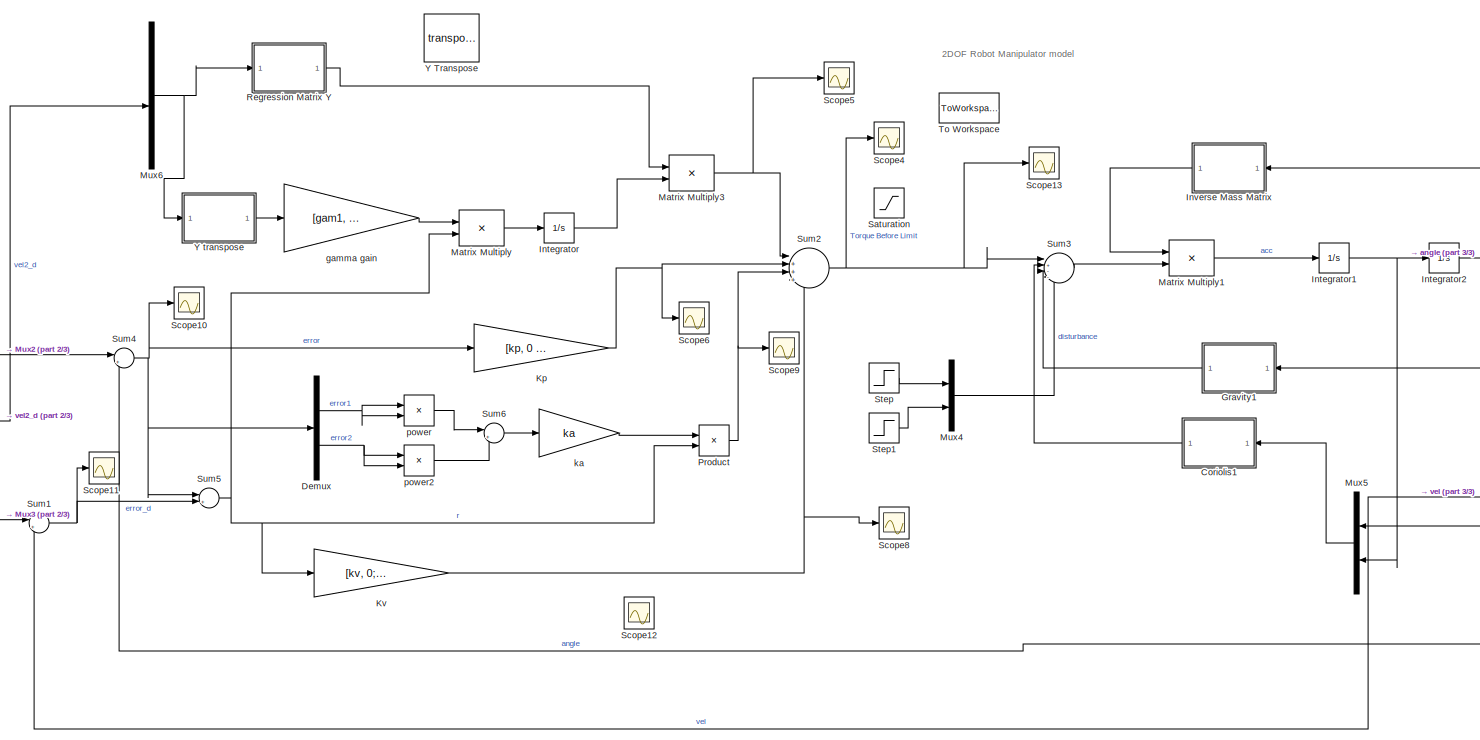
[diagram: root canvas - part 1/3, center side, full height]
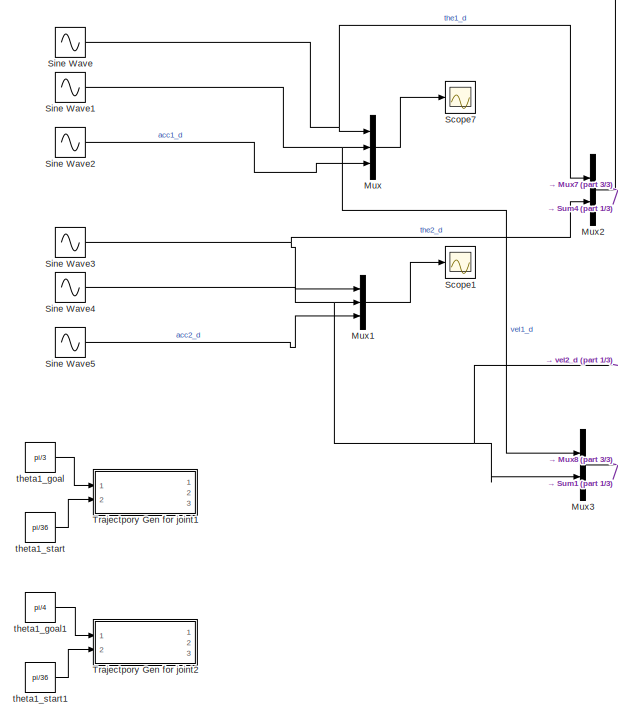
[diagram: root canvas - part 2/3, left side, full height]
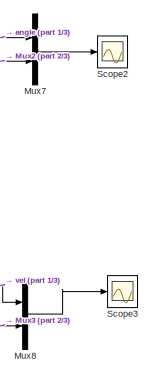
[diagram: root canvas - part 3/3, middle right region]
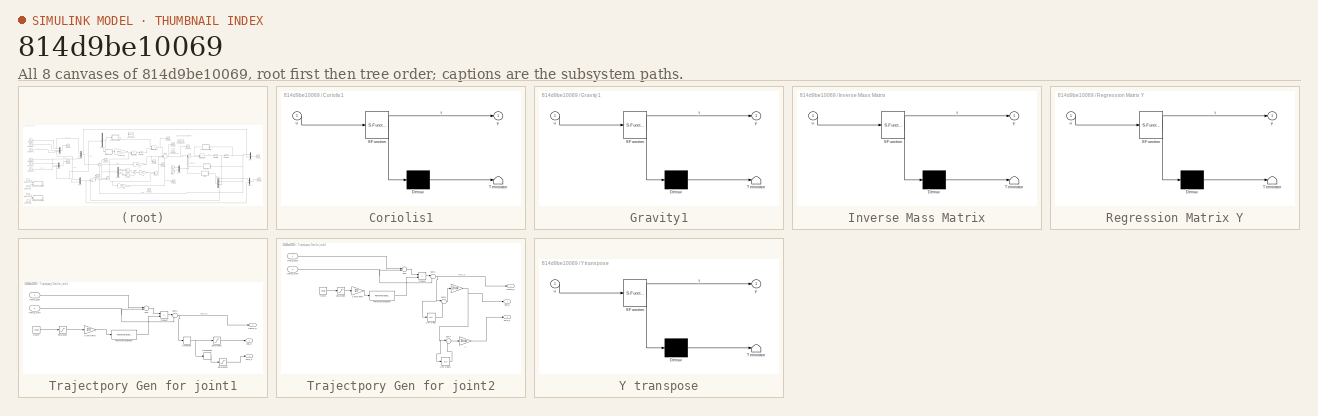
[diagram: thumbnail index - all 8 canvases of the model, root first then tree order]
MODEL slx_814d9be10069
KIND model
CONFIG AbsTol = auto
CONFIG EnableMultiTasking = off
CONFIG FixedStep = auto
CONFIG MaxStep = auto
CONFIG MinStep = auto
CONFIG RelTol = 1e-3
CONFIG SampleTimeConstraint = Unconstrained
CONFIG Solver = ode45
CONFIG SolverName = ode45
CONFIG StartTime = 0.0
CONFIG StopTime = 60
BLOCK [SubSystem] Coriolis1
  ErrorFcn = Stateflow.Translate.translate
  PermitHierarchicalResolution = ExplicitOnly
  Ports = [1, 1]
  RequestExecContextInheritance = off
  SFBlockType = MATLAB Function
  TreatAsAtomicUnit = on
BLOCK [Demux] Coriolis1/ Demux 
  Outputs = 1
  Ports = [1, 1]
BLOCK [S-Function] Coriolis1/ SFunction 
  EnableBusSupport = on
  FunctionName = sf_sfun
  PortCounts = [1 2]
  Ports = [1, 2]
  SFcnIsStateOwnerBlock = off
  SFunctionDeploymentMode = off
  Tag = Stateflow S-Function AdaptiveControl_IRC 5
BLOCK [Terminator] Coriolis1/ Terminator 
BLOCK [Inport] Coriolis1/u
  IconDisplay = Port number
BLOCK [Outport] Coriolis1/y
  IconDisplay = Port number
BLOCK [Demux] Demux
  DisplayOption = bar
  Outputs = 2
  Ports = [1, 2]
BLOCK [SubSystem] Gravity1
  ErrorFcn = Stateflow.Translate.translate
  PermitHierarchicalResolution = ExplicitOnly
  Ports = [1, 1]
  RequestExecContextInheritance = off
  SFBlockType = MATLAB Function
  TreatAsAtomicUnit = on
BLOCK [Demux] Gravity1/ Demux 
  Outputs = 1
  Ports = [1, 1]
BLOCK [S-Function] Gravity1/ SFunction 
  EnableBusSupport = on
  FunctionName = sf_sfun
  PortCounts = [1 2]
  Ports = [1, 2]
  SFcnIsStateOwnerBlock = off
  SFunctionDeploymentMode = off
  Tag = Stateflow S-Function AdaptiveControl_IRC 6
BLOCK [Terminator] Gravity1/ Terminator 
BLOCK [Inport] Gravity1/u
  IconDisplay = Port number
BLOCK [Outport] Gravity1/y
  IconDisplay = Port number
BLOCK [Integrator] Integrator
  InitialCondition = [0; 0]
  Ports = [1, 1]
BLOCK [Integrator] Integrator1
  InitialCondition = [0; 0]
  Ports = [1, 1]
BLOCK [Integrator] Integrator2
  InitialCondition = [0; 0]
  Ports = [1, 1]
BLOCK [SubSystem] Inverse Mass Matrix
  ErrorFcn = Stateflow.Translate.translate
  PermitHierarchicalResolution = ExplicitOnly
  Ports = [1, 1]
  RequestExecContextInheritance = off
  SFBlockType = MATLAB Function
  TreatAsAtomicUnit = on
BLOCK [Demux] Inverse Mass Matrix/ Demux 
  Outputs = 1
  Ports = [1, 1]
BLOCK [S-Function] Inverse Mass Matrix/ SFunction 
  EnableBusSupport = on
  FunctionName = sf_sfun
  PortCounts = [1 2]
  Ports = [1, 2]
  SFcnIsStateOwnerBlock = off
  SFunctionDeploymentMode = off
  Tag = Stateflow S-Function AdaptiveControl_IRC 3
BLOCK [Terminator] Inverse Mass Matrix/ Terminator 
BLOCK [Inport] Inverse Mass Matrix/u
  IconDisplay = Port number
BLOCK [Outport] Inverse Mass Matrix/y
  IconDisplay = Port number
BLOCK [Gain] Kp
  Gain = [kp, 0 ; 0, kp]
  Multiplication = Matrix(K*u)
  OutDataTypeStr = Inherit: Inherit via internal rule
  ParamDataTypeStr = Inherit: Inherit via internal rule
  SaturateOnIntegerOverflow = off
BLOCK [Gain] Kv
  Gain = [kv, 0; 0, kv]
  Multiplication = Matrix(K*u)
  OutDataTypeStr = Inherit: Inherit via internal rule
  ParamDataTypeStr = Inherit: Inherit via internal rule
  SaturateOnIntegerOverflow = off
BLOCK [Product] Matrix Multiply
  InputSameDT = off
  Multiplication = Matrix(*)
  OutDataTypeStr = Inherit: Inherit via internal rule
  Ports = [2, 1]
  RndMeth = Floor
  SaturateOnIntegerOverflow = off
BLOCK [Product] Matrix Multiply1
  InputSameDT = off
  Multiplication = Matrix(*)
  OutDataTypeStr = Inherit: Inherit via internal rule
  Ports = [2, 1]
  RndMeth = Floor
  SaturateOnIntegerOverflow = off
BLOCK [Product] Matrix Multiply3
  InputSameDT = off
  Multiplication = Matrix(*)
  OutDataTypeStr = Inherit: Inherit via internal rule
  Ports = [2, 1]
  RndMeth = Floor
  SaturateOnIntegerOverflow = off
BLOCK [Mux] Mux
  DisplayOption = bar
  Inputs = 3
  Ports = [3, 1]
BLOCK [Mux] Mux1
  DisplayOption = bar
  Inputs = 3
  Ports = [3, 1]
BLOCK [Mux] Mux2
  DisplayOption = bar
  Inputs = 2
  Ports = [2, 1]
BLOCK [Mux] Mux3
  DisplayOption = bar
  Inputs = 2
  Ports = [2, 1]
BLOCK [Mux] Mux4
  DisplayOption = bar
  Inputs = 2
  Ports = [2, 1]
BLOCK [Mux] Mux5
  DisplayOption = bar
  Inputs = 2
  Ports = [2, 1]
BLOCK [Mux] Mux6
  DisplayOption = bar
  Inputs = 6
  Ports = [6, 1]
BLOCK [Mux] Mux7
  DisplayOption = bar
  Inputs = 2
  Ports = [2, 1]
BLOCK [Mux] Mux8
  DisplayOption = bar
  Inputs = 2
  Ports = [2, 1]
BLOCK [Product] Product
  InputSameDT = off
  OutDataTypeStr = Inherit: Inherit via internal rule
  Ports = [2, 1]
  RndMeth = Floor
  SaturateOnIntegerOverflow = off
BLOCK [SubSystem] Regression Matrix Y
  ErrorFcn = Stateflow.Translate.translate
  PermitHierarchicalResolution = ExplicitOnly
  Ports = [1, 1]
  RequestExecContextInheritance = off
  SFBlockType = MATLAB Function
  TreatAsAtomicUnit = on
BLOCK [Demux] Regression Matrix Y/ Demux 
  Outputs = 1
  Ports = [1, 1]
BLOCK [S-Function] Regression Matrix Y/ SFunction 
  EnableBusSupport = on
  FunctionName = sf_sfun
  PortCounts = [1 2]
  Ports = [1, 2]
  SFcnIsStateOwnerBlock = off
  SFunctionDeploymentMode = off
  Tag = Stateflow S-Function AdaptiveControl_IRC 2
BLOCK [Terminator] Regression Matrix Y/ Terminator 
BLOCK [Inport] Regression Matrix Y/u
  IconDisplay = Port number
BLOCK [Outport] Regression Matrix Y/y
  IconDisplay = Port number
BLOCK [Saturate] Saturation
  InputPortMap = u0
  LowerLimit = -4
  Ports = [1, 1]
  UpperLimit = 4
  ZeroCross = off
BLOCK [Scope] Scope1
  Floating = off
  NumInputPorts = 1
  Ports = [1]
  ScopeSpecificationString = Simulink.scopes.TimeScopeBlockCfg('CurrentConfiguration', extmgr.ConfigurationSet(extmgr.Configuration('Core','General UI',true),extmgr.Configuration('Core','Source UI',true),extmgr.Configuration('Sources','WiredSimulink',true,'DataLoggingVariableName','ScopeData1'),extmgr.Configuration('Visuals','Time Domain',true,'SerializedDisplays',{struct('MinYLimReal','-1.90245','MaxYLimReal','5.17331','YLab...<+1432ch>
BLOCK [Scope] Scope10
  Floating = off
  NumInputPorts = 1
  Ports = [1]
  ScopeSpecificationString = Simulink.scopes.TimeScopeBlockCfg('CurrentConfiguration', extmgr.ConfigurationSet(extmgr.Configuration('Core','General UI',true),extmgr.Configuration('Core','Source UI',true),extmgr.Configuration('Sources','WiredSimulink',true,'DataLoggingVariableName','ScopeData5','SampleTime','tick'),extmgr.Configuration('Visuals','Time Domain',true,'SerializedDisplays',{struct('MinYLimReal','-0.00523','MaxYLimR...<+1469ch>
BLOCK [Scope] Scope11
  Floating = off
  NumInputPorts = 1
  Ports = [1]
  ScopeSpecificationString = Simulink.scopes.TimeScopeBlockCfg('CurrentConfiguration', extmgr.ConfigurationSet(extmgr.Configuration('Core','General UI',true),extmgr.Configuration('Core','Source UI',true),extmgr.Configuration('Sources','WiredSimulink',true,'DataLoggingVariableName','ScopeData6','SampleTime','tick'),extmgr.Configuration('Visuals','Time Domain',true,'SerializedDisplays',{struct('MinYLimReal','-0.00085','MaxYLimR...<+1472ch>
BLOCK [Scope] Scope12
  Floating = off
  NumInputPorts = 1
  Ports = [1]
  ScopeSpecificationString = Simulink.scopes.TimeScopeBlockCfg('CurrentConfiguration', extmgr.ConfigurationSet(extmgr.Configuration('Core','General UI',true),extmgr.Configuration('Core','Source UI',true),extmgr.Configuration('Sources','WiredSimulink',true,'DataLoggingVariableName','ScopeData7'),extmgr.Configuration('Visuals','Time Domain',true,'SerializedDisplays',{struct('MinYLimReal','-0.09528','MaxYLimReal','0.70314','YLab...<+1453ch>
BLOCK [Scope] Scope13
  Floating = off
  NumInputPorts = 1
  Ports = [1]
  ScopeSpecificationString = Simulink.scopes.TimeScopeBlockCfg('CurrentConfiguration', extmgr.ConfigurationSet(extmgr.Configuration('Core','General UI',true),extmgr.Configuration('Core','Source UI',true),extmgr.Configuration('Sources','WiredSimulink',true,'DataLoggingVariableName','ScopeData8','SampleTime','tick'),extmgr.Configuration('Visuals','Time Domain',true,'SerializedDisplays',{struct('MinYLimReal','-5.00000','MaxYLimR...<+1490ch>
BLOCK [Scope] Scope2
  Floating = off
  NumInputPorts = 1
  Ports = [1]
  ScopeSpecificationString = Simulink.scopes.TimeScopeBlockCfg('CurrentConfiguration', extmgr.ConfigurationSet(extmgr.Configuration('Core','General UI',true),extmgr.Configuration('Core','Source UI',true),extmgr.Configuration('Sources','WiredSimulink',true,'DataLoggingVariableName','ScopeData2'),extmgr.Configuration('Visuals','Time Domain',true,'SerializedDisplays',{struct('MinYLimReal','-0.6548','MaxYLimReal','0.65647','YLabe...<+1457ch>
BLOCK [Scope] Scope3
  Floating = off
  NumInputPorts = 1
  Ports = [1]
  ScopeSpecificationString = Simulink.scopes.TimeScopeBlockCfg('CurrentConfiguration', extmgr.ConfigurationSet(extmgr.Configuration('Core','General UI',true),extmgr.Configuration('Core','Source UI',true),extmgr.Configuration('Sources','WiredSimulink',true,'DataLoggingVariableName','ScopeData3'),extmgr.Configuration('Visuals','Time Domain',true,'SerializedDisplays',{struct('MinYLimReal','-0.75236','MaxYLimReal','0.75596','YLab...<+1463ch>
BLOCK [Scope] Scope4
  Floating = off
  NumInputPorts = 1
  Ports = [1]
  ScopeSpecificationString = Simulink.scopes.TimeScopeBlockCfg('CurrentConfiguration', extmgr.ConfigurationSet(extmgr.Configuration('Core','General UI',true),extmgr.Configuration('Core','Source UI',true),extmgr.Configuration('Sources','WiredSimulink',true,'DataLoggingVariableName','ScopeData4','SampleTime','tick'),extmgr.Configuration('Visuals','Time Domain',true,'SerializedDisplays',{struct('MinYLimReal','-0.86146','MaxYLimR...<+1479ch>
BLOCK [Scope] Scope5
  Floating = off
  NumInputPorts = 1
  Ports = [1]
  ScopeSpecificationString = Simulink.scopes.TimeScopeBlockCfg('CurrentConfiguration', extmgr.ConfigurationSet(extmgr.Configuration('Core','General UI',true),extmgr.Configuration('Core','Source UI',true),extmgr.Configuration('Sources','WiredSimulink',true,'DataLoggingVariableName','ScopeData1'),extmgr.Configuration('Visuals','Time Domain',true,'SerializedDisplays',{struct('MinYLimReal','-4.14361','MaxYLimReal','37.29249','YLa...<+1475ch>
BLOCK [Scope] Scope6
  Floating = off
  NumInputPorts = 1
  Ports = [1]
  ScopeSpecificationString = Simulink.scopes.TimeScopeBlockCfg('CurrentConfiguration', extmgr.ConfigurationSet(extmgr.Configuration('Core','General UI',true),extmgr.Configuration('Core','Source UI',true),extmgr.Configuration('Sources','WiredSimulink',true,'DataLoggingVariableName','ScopeData2'),extmgr.Configuration('Visuals','Time Domain',true,'SerializedDisplays',{struct('MinYLimReal','-0.93568','MaxYLimReal','9.0835','YLabe...<+1439ch>
BLOCK [Scope] Scope7
  Floating = off
  NumInputPorts = 1
  Ports = [1]
  ScopeSpecificationString = Simulink.scopes.TimeScopeBlockCfg('CurrentConfiguration', extmgr.ConfigurationSet(extmgr.Configuration('Core','General UI',true),extmgr.Configuration('Core','Source UI',true),extmgr.Configuration('Sources','WiredSimulink',true),extmgr.Configuration('Visuals','Time Domain',true,'SerializedDisplays',{struct('MinYLimReal','-0.6545','MaxYLimReal','0.6545','YLabelReal','','MinYLimMag','0.00000','MaxYLi...<+1415ch>
BLOCK [Scope] Scope8
  Floating = off
  NumInputPorts = 1
  Ports = [1]
  ScopeSpecificationString = Simulink.scopes.TimeScopeBlockCfg('CurrentConfiguration', extmgr.ConfigurationSet(extmgr.Configuration('Core','General UI',true),extmgr.Configuration('Core','Source UI',true),extmgr.Configuration('Sources','WiredSimulink',true,'DataLoggingVariableName','ScopeData3'),extmgr.Configuration('Visuals','Time Domain',true,'SerializedDisplays',{struct('MinYLimReal','-17.04752','MaxYLimReal','14.04824','YL...<+1449ch>
BLOCK [Scope] Scope9
  Floating = off
  NumInputPorts = 1
  Ports = [1]
  ScopeSpecificationString = Simulink.scopes.TimeScopeBlockCfg('CurrentConfiguration', extmgr.ConfigurationSet(extmgr.Configuration('Core','General UI',true),extmgr.Configuration('Core','Source UI',true),extmgr.Configuration('Sources','WiredSimulink',true,'DataLoggingVariableName','ScopeData4'),extmgr.Configuration('Visuals','Time Domain',true,'SerializedDisplays',{struct('MinYLimReal','-0.0000006','MaxYLimReal','0.0000027','...<+1470ch>
BLOCK [Sin] Sine Wave
  Amplitude = the1
  Frequency = omega
  Ports = [0, 1]
  SampleTime = tick
BLOCK [Sin] Sine Wave1
  Amplitude = the1*omega
  Frequency = omega
  Phase = pi/2
  Ports = [0, 1]
  SampleTime = tick
BLOCK [Sin] Sine Wave2
  Amplitude = -the1*omega^2
  Frequency = omega
  Ports = [0, 1]
  SampleTime = tick
BLOCK [Sin] Sine Wave3
  Amplitude = the2
  Frequency = omega
  Ports = [0, 1]
  SampleTime = tick
BLOCK [Sin] Sine Wave4
  Amplitude = the2*omega
  Frequency = omega
  Phase = pi/2
  Ports = [0, 1]
  SampleTime = tick
BLOCK [Sin] Sine Wave5
  Amplitude = -the2*omega^2
  Frequency = omega
  Ports = [0, 1]
  SampleTime = tick
BLOCK [Step] Step
  After = 0
  SampleTime = 0
  Time = 10
BLOCK [Step] Step1
  After = 1.5
  SampleTime = 0
  Time = 10
BLOCK [Sum] Sum1
  IconShape = round
  InputSameDT = off
  Inputs = |+-
  OutDataTypeStr = Inherit: Inherit via internal rule
  Ports = [2, 1]
  SaturateOnIntegerOverflow = off
BLOCK [Sum] Sum2
  IconShape = round
  InputSameDT = off
  Inputs = |++++
  OutDataTypeStr = Inherit: Inherit via internal rule
  Ports = [4, 1]
  SaturateOnIntegerOverflow = off
BLOCK [Sum] Sum3
  IconShape = round
  InputSameDT = off
  Inputs = |+---
  OutDataTypeStr = Inherit: Inherit via internal rule
  Ports = [4, 1]
  SaturateOnIntegerOverflow = off
BLOCK [Sum] Sum4
  IconShape = round
  InputSameDT = off
  Inputs = |+-
  OutDataTypeStr = Inherit: Inherit via internal rule
  Ports = [2, 1]
  SaturateOnIntegerOverflow = off
BLOCK [Sum] Sum5
  IconShape = round
  InputSameDT = off
  Inputs = |++
  OutDataTypeStr = Inherit: Inherit via internal rule
  Ports = [2, 1]
  SaturateOnIntegerOverflow = off
BLOCK [Sum] Sum6
  IconShape = round
  InputSameDT = off
  Inputs = |++
  OutDataTypeStr = Inherit: Inherit via internal rule
  Ports = [2, 1]
  SaturateOnIntegerOverflow = off
BLOCK [ToWorkspace] To Workspace
  FixptAsFi = on
  MaxDataPoints = inf
  Ports = [1]
  SampleTime = tick
  Save2DSignal = 3-D array (concatenate along third dimension)
  SaveFormat = Timeseries
  VariableName = simTau
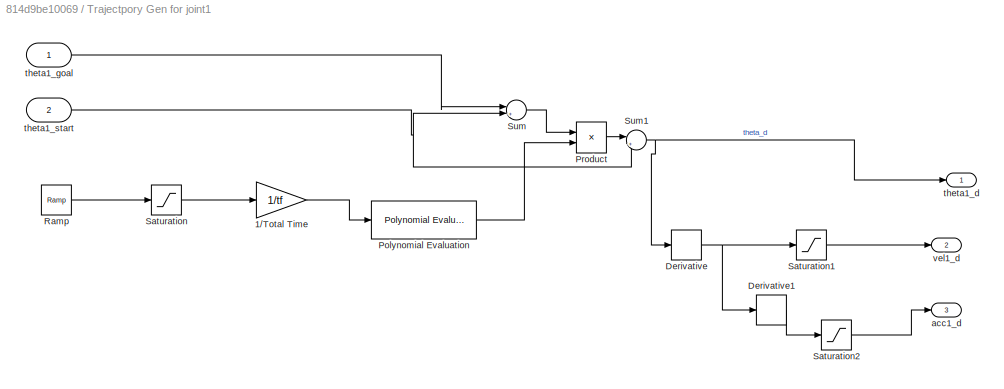
BLOCK [SubSystem] Trajectpory Gen for joint1
  Ports = [2, 3]
  RequestExecContextInheritance = off
BLOCK [Gain] Trajectpory Gen for joint1/1//Total Time 
  Gain = 1/tf
  OutDataTypeStr = Inherit: Inherit via internal rule
  ParamDataTypeStr = Inherit: Inherit via internal rule
  SaturateOnIntegerOverflow = off
BLOCK [Derivative] Trajectpory Gen for joint1/Derivative
BLOCK [Derivative] Trajectpory Gen for joint1/Derivative1
BLOCK [Reference] Trajectpory Gen for joint1/Polynomial Evaluation  REF=dsppolyfun/Polynomial
Evaluation
  Ports = [1, 1]
  SourceBlock = dsppolyfun/Polynomial\nEvaluation
  SourceProductBaseCode = DS
  SourceProductName = DSP System Toolbox
  SourceType = Polynomial Evaluation
BLOCK [Product] Trajectpory Gen for joint1/Product
  InputSameDT = off
  OutDataTypeStr = Inherit: Inherit via internal rule
  Ports = [2, 1]
  RndMeth = Floor
  SaturateOnIntegerOverflow = off
BLOCK [Reference] Trajectpory Gen for joint1/Ramp  REF=simulink/Sources/Ramp
  Ports = [0, 1]
  SourceBlock = simulink/Sources/Ramp
  SourceProductBaseCode = SL
  SourceProductName = Simulink
  SourceType = Ramp
BLOCK [Saturate] Trajectpory Gen for joint1/Saturation
  InputPortMap = u0
  LowerLimit = -tf
  Ports = [1, 1]
  UpperLimit = tf
BLOCK [Saturate] Trajectpory Gen for joint1/Saturation1
  InputPortMap = u0
  LowerLimit = -5
  Ports = [1, 1]
  UpperLimit = 5
  ZeroCross = off
BLOCK [Saturate] Trajectpory Gen for joint1/Saturation2
  InputPortMap = u0
  LowerLimit = -5
  Ports = [1, 1]
  UpperLimit = 5
  ZeroCross = off
BLOCK [Sum] Trajectpory Gen for joint1/Sum
  IconShape = round
  InputSameDT = off
  Inputs = |+-
  OutDataTypeStr = Inherit: Inherit via internal rule
  Ports = [2, 1]
  SaturateOnIntegerOverflow = off
BLOCK [Sum] Trajectpory Gen for joint1/Sum1
  IconShape = round
  InputSameDT = off
  Inputs = |++
  OutDataTypeStr = Inherit: Inherit via internal rule
  Ports = [2, 1]
  SaturateOnIntegerOverflow = off
BLOCK [Outport] Trajectpory Gen for joint1/acc1_d
  IconDisplay = Port number
  Port = 3
BLOCK [Outport] Trajectpory Gen for joint1/theta1_d
  IconDisplay = Port number
BLOCK [Inport] Trajectpory Gen for joint1/theta1_goal
  IconDisplay = Port number
BLOCK [Inport] Trajectpory Gen for joint1/theta1_start
  IconDisplay = Port number
  Port = 2
BLOCK [Outport] Trajectpory Gen for joint1/vel1_d
  IconDisplay = Port number
  Port = 2
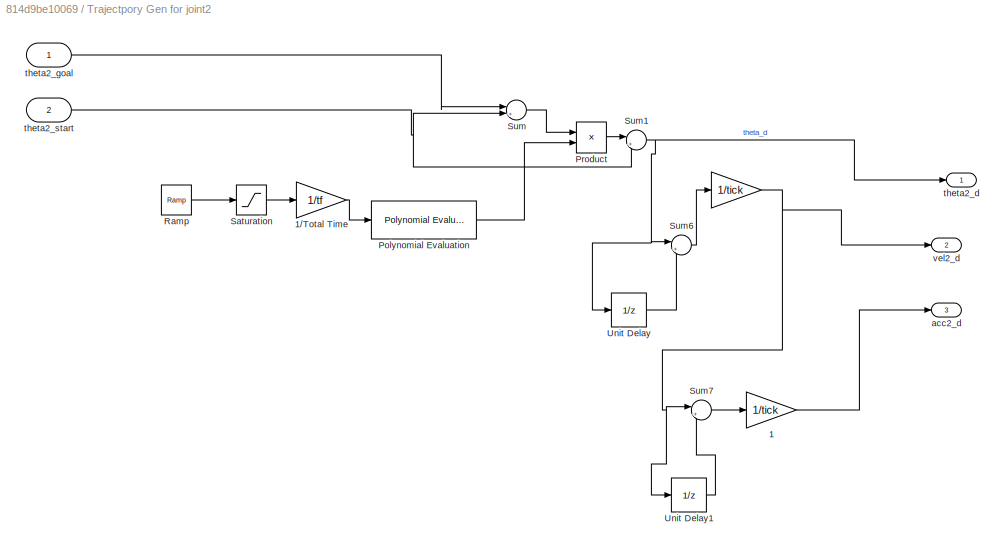
BLOCK [SubSystem] Trajectpory Gen for joint2
  Ports = [2, 3]
  RequestExecContextInheritance = off
BLOCK [Gain] Trajectpory Gen for joint2/ 
  Gain = 1/tick
  OutDataTypeStr = Inherit: Inherit via internal rule
  ParamDataTypeStr = Inherit: Inherit via internal rule
  SaturateOnIntegerOverflow = off
BLOCK [Gain] Trajectpory Gen for joint2/ 1
  Gain = 1/tick
  OutDataTypeStr = Inherit: Inherit via internal rule
  ParamDataTypeStr = Inherit: Inherit via internal rule
  SaturateOnIntegerOverflow = off
BLOCK [Gain] Trajectpory Gen for joint2/1//Total Time 
  Gain = 1/tf
  OutDataTypeStr = Inherit: Inherit via internal rule
  ParamDataTypeStr = Inherit: Inherit via internal rule
  SaturateOnIntegerOverflow = off
BLOCK [Reference] Trajectpory Gen for joint2/Polynomial Evaluation  REF=dsppolyfun/Polynomial
Evaluation
  Ports = [1, 1]
  SourceBlock = dsppolyfun/Polynomial\nEvaluation
  SourceProductBaseCode = DS
  SourceProductName = DSP System Toolbox
  SourceType = Polynomial Evaluation
BLOCK [Product] Trajectpory Gen for joint2/Product
  InputSameDT = off
  OutDataTypeStr = Inherit: Inherit via internal rule
  Ports = [2, 1]
  RndMeth = Floor
  SaturateOnIntegerOverflow = off
BLOCK [Reference] Trajectpory Gen for joint2/Ramp  REF=simulink/Sources/Ramp
  Ports = [0, 1]
  SourceBlock = simulink/Sources/Ramp
  SourceProductBaseCode = SL
  SourceProductName = Simulink
  SourceType = Ramp
BLOCK [Saturate] Trajectpory Gen for joint2/Saturation
  InputPortMap = u0
  LowerLimit = -tf
  Ports = [1, 1]
  UpperLimit = tf
BLOCK [Sum] Trajectpory Gen for joint2/Sum
  IconShape = round
  InputSameDT = off
  Inputs = |+-
  OutDataTypeStr = Inherit: Inherit via internal rule
  Ports = [2, 1]
  SaturateOnIntegerOverflow = off
BLOCK [Sum] Trajectpory Gen for joint2/Sum1
  IconShape = round
  InputSameDT = off
  Inputs = |++
  OutDataTypeStr = Inherit: Inherit via internal rule
  Ports = [2, 1]
  SaturateOnIntegerOverflow = off
BLOCK [Sum] Trajectpory Gen for joint2/Sum6
  IconShape = round
  InputSameDT = off
  Inputs = |+-
  OutDataTypeStr = Inherit: Inherit via internal rule
  Ports = [2, 1]
  SaturateOnIntegerOverflow = off
BLOCK [Sum] Trajectpory Gen for joint2/Sum7
  IconShape = round
  InputSameDT = off
  Inputs = |+-
  OutDataTypeStr = Inherit: Inherit via internal rule
  Ports = [2, 1]
  SaturateOnIntegerOverflow = off
BLOCK [UnitDelay] Trajectpory Gen for joint2/Unit Delay
  InputProcessing = Elements as channels (sample based)
  SampleTime = tick
BLOCK [UnitDelay] Trajectpory Gen for joint2/Unit Delay1
  InputProcessing = Elements as channels (sample based)
  SampleTime = tick
BLOCK [Outport] Trajectpory Gen for joint2/acc2_d
  IconDisplay = Port number
  Port = 3
BLOCK [Outport] Trajectpory Gen for joint2/theta2_d
  IconDisplay = Port number
BLOCK [Inport] Trajectpory Gen for joint2/theta2_goal
  IconDisplay = Port number
BLOCK [Inport] Trajectpory Gen for joint2/theta2_start
  IconDisplay = Port number
  Port = 2
BLOCK [Outport] Trajectpory Gen for joint2/vel2_d
  IconDisplay = Port number
  Port = 2
BLOCK [Math] Y Transpose
  Operator = transpose
  Ports = [1, 1]
BLOCK [SubSystem] Y transpose
  ErrorFcn = Stateflow.Translate.translate
  PermitHierarchicalResolution = ExplicitOnly
  Ports = [1, 1]
  RequestExecContextInheritance = off
  SFBlockType = MATLAB Function
  TreatAsAtomicUnit = on
BLOCK [Demux] Y transpose/ Demux 
  Outputs = 1
  Ports = [1, 1]
BLOCK [S-Function] Y transpose/ SFunction 
  EnableBusSupport = on
  FunctionName = sf_sfun
  PortCounts = [1 2]
  Ports = [1, 2]
  SFcnIsStateOwnerBlock = off
  SFunctionDeploymentMode = off
  Tag = Stateflow S-Function AdaptiveControl_IRC 1
BLOCK [Terminator] Y transpose/ Terminator 
BLOCK [Inport] Y transpose/u
  IconDisplay = Port number
BLOCK [Outport] Y transpose/y
  IconDisplay = Port number
BLOCK [Gain] gamma gain
  Gain = [gam1, 0 ; 0, gam2]
  Multiplication = Matrix(K*u)
  OutDataTypeStr = Inherit: Inherit via internal rule
  ParamDataTypeStr = Inherit: Inherit via internal rule
  SaturateOnIntegerOverflow = off
BLOCK [Gain] ka
  Gain = ka
  OutDataTypeStr = Inherit: Inherit via internal rule
  ParamDataTypeStr = Inherit: Inherit via internal rule
  SaturateOnIntegerOverflow = off
BLOCK [Product] power
  InputSameDT = off
  OutDataTypeStr = Inherit: Inherit via internal rule
  Ports = [2, 1]
  RndMeth = Floor
  SaturateOnIntegerOverflow = off
BLOCK [Product] power2 
  InputSameDT = off
  OutDataTypeStr = Inherit: Inherit via internal rule
  Ports = [2, 1]
  RndMeth = Floor
  SaturateOnIntegerOverflow = off
BLOCK [Constant] theta1_goal
  SampleTime = tick
  Value = pi/3
BLOCK [Constant] theta1_goal1
  SampleTime = tick
  Value = pi/4
BLOCK [Constant] theta1_start
  SampleTime = tick
  Value = pi/36
BLOCK [Constant] theta1_start1
  SampleTime = tick
  Value = pi/36
ANNOTATION (root): 2DOF Robot Manipulator model
LINE Coriolis1:1 -> Sum3:2
NET Demux:1 -> power:1, power:2
NET Demux:2 -> power2 :1, power2 :2
LINE Gravity1:1 -> Sum3:3
NET Integrator1:1 -> Integrator2:1, Mux5:2, Mux8:1, Sum1:2
NET Integrator2:1 -> Gravity1:1, Inverse Mass Matrix:1, Mux5:1, Mux7:1, Sum4:2
LINE Integrator:1 -> Matrix Multiply3:2
LINE Inverse Mass Matrix:1 -> Matrix Multiply1:1
NET Kp:1 -> Scope6:1, Sum2:2
NET Kv:1 -> Scope8:1, Sum2:4
LINE Matrix Multiply1:1 -> Integrator1:1
NET Matrix Multiply3:1 -> Scope5:1, Sum2:1
LINE Matrix Multiply:1 -> Integrator:1
LINE Mux1:1 -> Scope1:1
NET Mux2:1 -> Mux7:2, Sum4:1
NET Mux3:1 -> Mux8:2, Sum1:1
LINE Mux4:1 -> Sum3:4
LINE Mux5:1 -> Coriolis1:1
NET Mux6:1 -> Regression Matrix Y:1, Y transpose:1
LINE Mux7:1 -> Scope2:1
LINE Mux8:1 -> Scope3:1
LINE Mux:1 -> Scope7:1
NET Product:1 -> Scope9:1, Sum2:3
LINE Regression Matrix Y:1 -> Matrix Multiply3:1
NET Sine Wave1:1 -> Mux3:1, Mux:2
LINE Sine Wave2:1 -> Mux:3
NET Sine Wave3:1 -> Mux1:1, Mux2:2
NET Sine Wave4:1 -> Mux1:2, Mux3:2, Mux6:4
LINE Sine Wave5:1 -> Mux1:3
NET Sine Wave:1 -> Mux2:1, Mux:1
LINE Step1:1 -> Mux4:2
LINE Step:1 -> Mux4:1
NET Sum1:1 -> Scope11:1, Sum5:2
NET Sum2:1 -> Scope13:1, Scope4:1, Sum3:1
LINE Sum3:1 -> Matrix Multiply1:2
NET Sum4:1 -> Demux:1, Kp:1, Scope10:1, Sum5:1
NET Sum5:1 -> Kv:1, Matrix Multiply:2, Product:2
LINE Sum6:1 -> ka:1
LINE Trajectpory Gen for joint1/1//Total Time :1 -> Trajectpory Gen for joint1/Polynomial Evaluation:1
LINE Trajectpory Gen for joint1/Derivative1:1 -> Trajectpory Gen for joint1/Saturation2:1
NET Trajectpory Gen for joint1/Derivative:1 -> Trajectpory Gen for joint1/Derivative1:1, Trajectpory Gen for joint1/Saturation1:1
LINE Trajectpory Gen for joint1/Polynomial Evaluation:1 -> Trajectpory Gen for joint1/Product:2
LINE Trajectpory Gen for joint1/Product:1 -> Trajectpory Gen for joint1/Sum1:1
LINE Trajectpory Gen for joint1/Ramp:1 -> Trajectpory Gen for joint1/Saturation:1
LINE Trajectpory Gen for joint1/Saturation1:1 -> Trajectpory Gen for joint1/vel1_d:1
LINE Trajectpory Gen for joint1/Saturation2:1 -> Trajectpory Gen for joint1/acc1_d:1
LINE Trajectpory Gen for joint1/Saturation:1 -> Trajectpory Gen for joint1/1//Total Time :1
NET Trajectpory Gen for joint1/Sum1:1 -> Trajectpory Gen for joint1/Derivative:1, Trajectpory Gen for joint1/theta1_d:1
LINE Trajectpory Gen for joint1/Sum:1 -> Trajectpory Gen for joint1/Product:1
LINE Trajectpory Gen for joint1/theta1_goal:1 -> Trajectpory Gen for joint1/Sum:1
NET Trajectpory Gen for joint1/theta1_start:1 -> Trajectpory Gen for joint1/Sum1:2, Trajectpory Gen for joint1/Sum:2
LINE Trajectpory Gen for joint2/ 1:1 -> Trajectpory Gen for joint2/acc2_d:1
NET Trajectpory Gen for joint2/ :1 -> Trajectpory Gen for joint2/Sum7:1, Trajectpory Gen for joint2/Unit Delay1:1, Trajectpory Gen for joint2/vel2_d:1
LINE Trajectpory Gen for joint2/1//Total Time :1 -> Trajectpory Gen for joint2/Polynomial Evaluation:1
LINE Trajectpory Gen for joint2/Polynomial Evaluation:1 -> Trajectpory Gen for joint2/Product:2
LINE Trajectpory Gen for joint2/Product:1 -> Trajectpory Gen for joint2/Sum1:1
LINE Trajectpory Gen for joint2/Ramp:1 -> Trajectpory Gen for joint2/Saturation:1
LINE Trajectpory Gen for joint2/Saturation:1 -> Trajectpory Gen for joint2/1//Total Time :1
NET Trajectpory Gen for joint2/Sum1:1 -> Trajectpory Gen for joint2/Sum6:1, Trajectpory Gen for joint2/Unit Delay:1, Trajectpory Gen for joint2/theta2_d:1
LINE Trajectpory Gen for joint2/Sum6:1 -> Trajectpory Gen for joint2/ :1
LINE Trajectpory Gen for joint2/Sum7:1 -> Trajectpory Gen for joint2/ 1:1
LINE Trajectpory Gen for joint2/Sum:1 -> Trajectpory Gen for joint2/Product:1
LINE Trajectpory Gen for joint2/Unit Delay1:1 -> Trajectpory Gen for joint2/Sum7:2
LINE Trajectpory Gen for joint2/Unit Delay:1 -> Trajectpory Gen for joint2/Sum6:2
LINE Trajectpory Gen for joint2/theta2_goal:1 -> Trajectpory Gen for joint2/Sum:1
NET Trajectpory Gen for joint2/theta2_start:1 -> Trajectpory Gen for joint2/Sum1:2, Trajectpory Gen for joint2/Sum:2
LINE Y transpose:1 -> gamma gain:1
LINE gamma gain:1 -> Matrix Multiply:1
LINE ka:1 -> Product:1
LINE power2 :1 -> Sum6:2
LINE power:1 -> Sum6:1
LINE theta1_goal1:1 -> Trajectpory Gen for joint2:1
LINE theta1_goal:1 -> Trajectpory Gen for joint1:1
LINE theta1_start1:1 -> Trajectpory Gen for joint2:2
LINE theta1_start:1 -> Trajectpory Gen for joint1:2
note: NET lines group one-source signal fan-out (src -> all destinations, sorted); 1:1 wires keep LINE
CHART Y transpose states=1 transitions=1
  STATE_LABEL 'eML_blk_kernel()'
  STATE_LABEL 'SCRIPT:\nfunction y = fcn(u)\n\n% Parameters\nm1 = 0.233;   %kg\nm2 = 0.2;\nl1 = 0.192;\nl2 = 0.185;\nL1 = 0.27;\nL2 = 0.23;\ng = 9.81;\n\nI1 = m1*l1^2;\nI2 = m2*l2^2;\n\n% Inputs\nq1 = u(1);\nq2 = u(2);\n\nq1d = u(3);\nq2d = u(4);\n\nq1dd = u(5);\nq2dd = u(6);\n\nY11 = l1^2*q1dd + l1^2*q1dd + g*l1*cos(q1);\nY12 = (L1^2 + l2^2 + L1*l2*cos(q2))*q1dd + l2^2*q1dd + (l2^2 + L1*l2*cos(q2))*q2dd + l2^2*q2dd - (L1*l2*sin(q2)*(q1d...<+205ch>'
CHART Regression Matrix Y states=1 transitions=1
  STATE_LABEL 'eML_blk_kernel()'
  STATE_LABEL 'SCRIPT:\nfunction y = Y(u)\n\n% Parameters\nm1 = 0.233;   %kg\nm2 = 0.2;\nl1 = 0.192;\nl2 = 0.185;\nL1 = 0.27;\nL2 = 0.23;\ng = 9.81;\n\nI1 = m1*l1^2;\nI2 = m2*l2^2;\n\n% Inputs\nq1dd_r = u(1);   % Desired Trajectory\nq2dd_r = u(2);   % Desired Trajectory  \n\nq1d_r = u(3);   % Desired Trajectory\nq2d_r = u(4);   % Desired Trajectory\n\nq1_r = u(5);   % Desired Trajectory\nq2_r = u(6);   % Desired Trajectory\n\nq1d = u(7)...<+533ch>'
CHART Inverse Mass Matrix states=1 transitions=1
  STATE_LABEL 'eML_blk_kernel()'
  STATE_LABEL 'SCRIPT:\nfunction y = INVMass(u)\n\nthe1 = u(1);\nthe2 = u(2);\n\n%m1 = 0.233;   %kg     % True mass\n%m2 = 0.2;             % True mass\nm1 = 0.26;   %kg      % Unknown mass \nm2 = 0.15;              % Unknown mass \n%l1 = 0.23;    % chagne the parameter value for make an imperfect model\n%l2 = 0.17;    % chagne the parameter value for make an imperfect model\n%L1 = 0.3;     % chagne the parameter value for ...<+494ch>'
CHART Coriolis1 states=1 transitions=1
  STATE_LABEL 'eML_blk_kernel()'
  STATE_LABEL 'SCRIPT:\nfunction y = V(u)\n\nthe1 = u(1);\nthe2 = u(2);\n\nvel1 = u(3);\nvel2 = u(4);\n\n%m1 = 0.233;   %kg     % True mass\n%m2 = 0.2;             % True mass\nm1 = 0.26;   %kg      % Unknown mass \nm2 = 0.15;              % Unknown mass \n%l1 = 0.23;    % chagne the parameter value for make an imperfect model\n%l2 = 0.17;    % chagne the parameter value for make an imperfect model\n%L1 = 0.3;     % chagne the...<+383ch>'
CHART Gravity1 states=1 transitions=1
  STATE_LABEL 'eML_blk_kernel()'
  STATE_LABEL 'SCRIPT:\nfunction y = G(u)\n\nthe1 = u(1);\nthe2 = u(2);\n\n%m1 = 0.233;   %kg     % True mass\n%m2 = 0.2;             % True mass\nm1 = 0.26;   %kg      % Unknown mass \nm2 = 0.15;              % Unknown mass \n%l1 = 0.23;    % chagne the parameter value for make an imperfect model\n%l2 = 0.17;    % chagne the parameter value for make an imperfect model\n%L1 = 0.3;     % chagne the parameter value for make a...<+364ch>'
